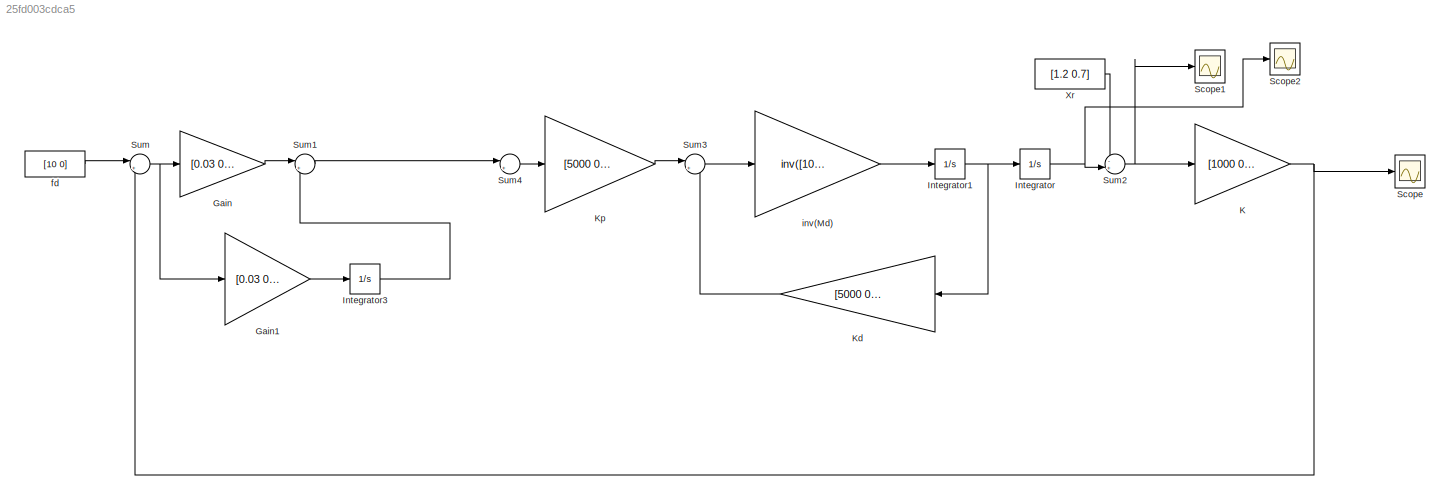
MODEL slx_25fd003cdca5
KIND model
CONFIG AbsTol = auto
CONFIG EnableMultiTasking = off
CONFIG FixedStep = auto
CONFIG MaxStep = auto
CONFIG MinStep = auto
CONFIG RelTol = 1e-3
CONFIG SampleTimeConstraint = Unconstrained
CONFIG SolverName = VariableStepAuto
CONFIG StartTime = 0.0
CONFIG StopTime = 10
BLOCK [Gain] Gain
  Gain = [0.03 0; 0 0]
  Multiplication = Matrix(u*K)
BLOCK [Gain] Gain1
  Gain = [0.03 0; 0 0]
  Multiplication = Matrix(u*K)
BLOCK [Integrator] Integrator
  InitialCondition = [1.3 0.7]
BLOCK [Integrator] Integrator1
  InitialCondition = [0 0]
BLOCK [Integrator] Integrator3
BLOCK [Gain] K
  Gain = [1000 0; 0 0]
  Multiplication = Matrix(u*K)
BLOCK [Gain] Kd
  Gain = [5000 0; 0 5000]
  Multiplication = Matrix(u*K)
BLOCK [Gain] Kp
  Gain = [5000 0; 0 5000]
  Multiplication = Matrix(u*K)
BLOCK [Scope] Scope
  Floating = off
  NumInputPorts = 2
  ScopeSpecificationString = Simulink.scopes.TimeScopeBlockCfg('CurrentConfiguration', extmgr.ConfigurationSet(extmgr.Configuration('Core','General UI',true),extmgr.Configuration('Core','Source UI',true),extmgr.Configuration('Sources','WiredSimulink',true),extmgr.Configuration('Visuals','Time Domain',true,'SerializedDisplays',{struct('MinYLimReal','-125.71981','MaxYLimReal','125.07998','YLabelReal','','MinYLimMag',' 0.00000',...<+1887ch>
BLOCK [Scope] Scope1
  Floating = off
  NumInputPorts = 2
  ScopeSpecificationString = Simulink.scopes.TimeScopeBlockCfg('CurrentConfiguration', extmgr.ConfigurationSet(extmgr.Configuration('Core','General UI',true),extmgr.Configuration('Core','Source UI',true),extmgr.Configuration('Sources','WiredSimulink',true,'DataLoggingVariableName','ScopeData1'),extmgr.Configuration('Visuals','Time Domain',true,'SerializedDisplays',{struct('MinYLimReal','-0.06352','MaxYLimReal','0.11817','YLab...<+1415ch>
BLOCK [Scope] Scope2
  Floating = off
  NumInputPorts = 1
  ScopeSpecificationString = Simulink.scopes.TimeScopeBlockCfg('CurrentConfiguration', extmgr.ConfigurationSet(extmgr.Configuration('Core','General UI',true),extmgr.Configuration('Core','Source UI',true),extmgr.Configuration('Sources','WiredSimulink',true,'DataLoggingVariableName','ScopeData2'),extmgr.Configuration('Visuals','Time Domain',true,'SerializedDisplays',{struct('MinYLimReal','0.625','MaxYLimReal','1.375','YLabelRea...<+1394ch>
BLOCK [Sum] Sum
  Inputs = |+-
BLOCK [Sum] Sum1
  Inputs = |++
BLOCK [Sum] Sum2
  Inputs = -+|
BLOCK [Sum] Sum3
  Inputs = |+-
BLOCK [Sum] Sum4
  Inputs = |+-
BLOCK [Constant] Xr
  Value = [1.2 0.7]
BLOCK [Constant] fd
  Value = [10 0]
BLOCK [Gain] inv(Md)
  Gain = inv([1000 0; 0 1000])
  Multiplication = Matrix(u*K)
LINE Gain1:1 -> Integrator3:1
LINE Gain:1 -> Sum1:1
NET Integrator1:1 -> Integrator:1, Kd:1
LINE Integrator3:1 -> Sum1:2
NET Integrator:1 -> Scope2:1, Sum2:2
NET K:1 -> Scope:1, Sum:2
LINE Kd:1 -> Sum3:2
LINE Kp:1 -> Sum3:1
LINE Sum1:1 -> Sum4:1
NET Sum2:1 -> K:1, Scope1:1
LINE Sum3:1 -> inv(Md):1
LINE Sum4:1 -> Kp:1
NET Sum:1 -> Gain1:1, Gain:1
LINE Xr:1 -> Sum2:1
LINE fd:1 -> Sum:1
LINE inv(Md):1 -> Integrator1:1
note: NET lines group one-source signal fan-out (src -> all destinations, sorted); 1:1 wires keep LINE
